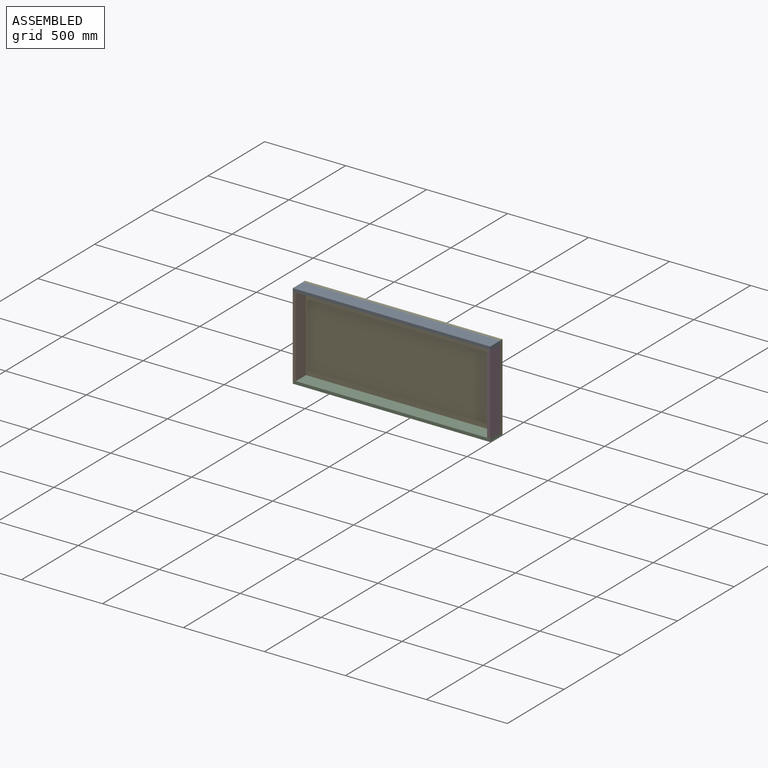
[diagram: assembled view]
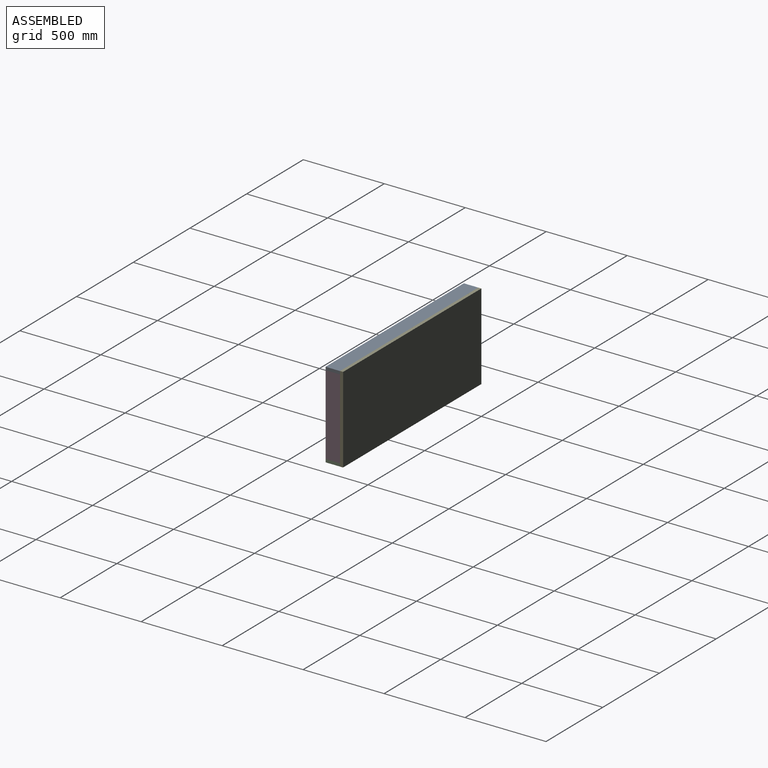
[diagram: assembled view, second angle]
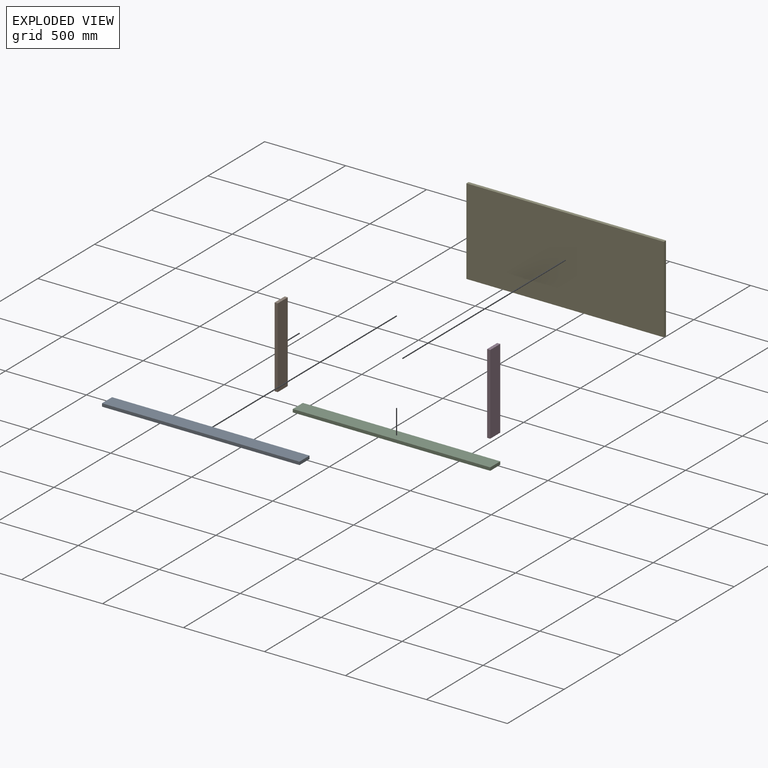
[diagram: exploded view]
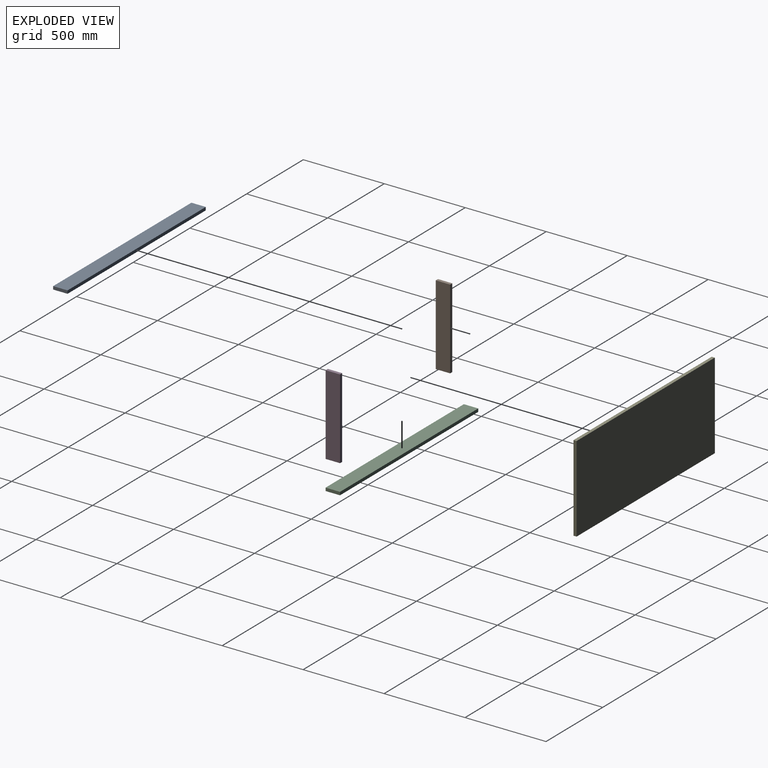
[diagram: exploded view, second angle]
ASSEMBLY  parts=5 mates=12
PART A: 6 faces, bbox 1219.2x19.1x88.9 mm
  f0: plane 88.9x19.05mm, normal (-1,0,0), area 1693.5mm2, adj f1,f3,f4,f5
  f1: plane 1219.2x19.05mm, normal (0,0,-1), area 23225.8mm2, adj f0,f2,f4,f5
  f2: plane 88.9x19.05mm, normal (1,0,0), area 1693.5mm2, adj f1,f3,f4,f5
  f3: plane 1219.2x19.05mm, normal (0,0,1), area 23225.8mm2, adj f0,f2,f4,f5
  f4: plane 1219.2x88.9mm, normal (0,-1,0), area 108386.9mm2, adj f0,f1,f2,f3
  f5: plane 1219.2x88.9mm, normal (0,1,0), area 108386.9mm2, adj f0,f1,f2,f3
PART B: 6 faces, bbox 88.9x19.1x495.3 mm
  f0: plane 88.9x19.05mm, normal (0,0,-1), area 1693.5mm2, adj f1,f3,f4,f5
  f1: plane 495.3x19.05mm, normal (1,0,0), area 9435.5mm2, adj f0,f2,f4,f5
  f2: plane 88.9x19.05mm, normal (0,0,1), area 1693.5mm2, adj f1,f3,f4,f5
  f3: plane 495.3x19.05mm, normal (-1,0,0), area 9435.5mm2, adj f0,f2,f4,f5
  f4: plane 495.3x88.9mm, normal (0,-1,0), area 44032.2mm2, adj f0,f1,f2,f3
  f5: plane 495.3x88.9mm, normal (0,1,0), area 44032.2mm2, adj f0,f1,f2,f3
PART C: same geometry as A
PART D: same geometry as B
PART E: 6 faces, bbox 1219.2x19.1x533.4 mm
  f0: plane 1219.2x19.05mm, normal (0,0,1), area 23225.8mm2, adj f1,f3,f4,f5
  f1: plane 533.4x19.05mm, normal (-1,0,0), area 10161.3mm2, adj f0,f2,f4,f5
  f2: plane 1219.2x19.05mm, normal (0,0,-1), area 23225.8mm2, adj f1,f3,f4,f5
  f3: plane 533.4x19.05mm, normal (1,0,0), area 10161.3mm2, adj f0,f2,f4,f5
  f4: plane 1219.2x533.4mm, normal (0,-1,0), area 650321.3mm2, adj f0,f1,f2,f3
  f5: plane 1219.2x533.4mm, normal (0,1,0), area 650321.3mm2, adj f0,f1,f2,f3
PLACE A rot(axis=(-1,0,0),90deg) t=(0,-899.59,-149.97)mm
PLACE B rot(axis=(0.71,0.71,0),180deg) t=(19.05,104.42,-149.97)mm
PLACE C rot(axis=(-1,0,0),90deg) t=(0,-899.59,-664.32)mm
PLACE D rot(axis=(0,0,-1),90deg) t=(1219.2,-231.42,-645.27)mm
PLACE E at identity fixed
MATE planar C.f5 <-> E.f2  axis (0,0,-1) through (0,-19.05,-664.32)mm
MATE planar C.f4 <-> D.f0  axis (0,0,1) through (1219.2,-107.95,-645.27)mm
MATE planar E.f1 <-> C.f0  axis (-1,0,0) through (0,-19.05,-664.32)mm
MATE planar A.f3 <-> E.f4  axis (0,1,0) through (609.6,-19.05,-140.45)mm
MATE planar B.f1 <-> E.f4  axis (0,1,0) through (9.52,-19.05,-397.62)mm
MATE planar E.f1 <-> A.f0  axis (-1,0,0) through (0,-19.05,-130.92)mm
MATE planar B.f4 <-> E.f1  axis (-1,0,0) through (0,-63.5,-397.62)mm
MATE planar D.f3 <-> E.f4  axis (0,1,0) through (1209.68,-19.05,-645.27)mm
MATE planar D.f5 <-> E.f3  axis (1,0,0) through (1219.2,-19.05,-149.97)mm
MATE planar C.f3 <-> E.f4  axis (0,1,0) through (609.6,-19.05,-654.8)mm
MATE planar A.f5 <-> B.f0  axis (0,0,-1) through (0,-107.95,-149.97)mm
MATE planar A.f4 <-> E.f0  axis (0,0,1) through (0,-19.05,-130.92)mm
